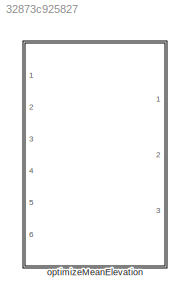
MODEL slx_32873c925827
KIND library
CONFIG AbsTol = auto
CONFIG EnableMultiTasking = off
CONFIG FixedStep = auto
CONFIG MaxStep = auto
CONFIG MinStep = auto
CONFIG RelTol = 1e-3
CONFIG SampleTimeConstraint = Unconstrained
CONFIG SolverName = VariableStepAuto
CONFIG StartTime = 0.0
CONFIG StopTime = 10.0
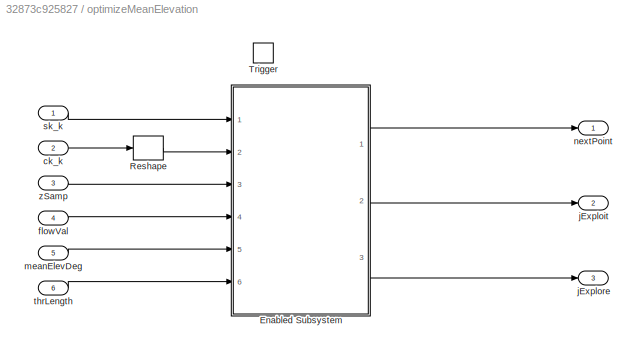
BLOCK [SubSystem] optimizeMeanElevation
  Ports = [6, 3, 0, 1]
  RequestExecContextInheritance = off
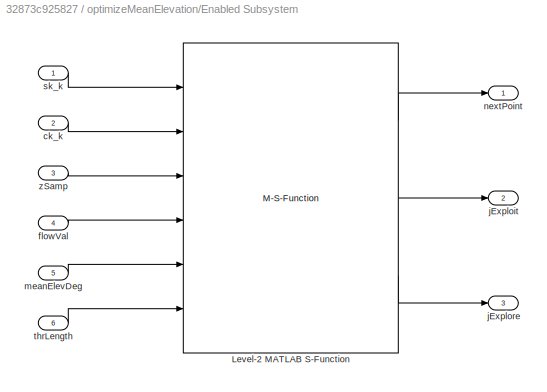
BLOCK [SubSystem] optimizeMeanElevation/Enabled Subsystem
  Ports = [6, 3]
  RequestExecContextInheritance = off
  TreatAsAtomicUnit = on
BLOCK [M-S-Function] optimizeMeanElevation/Enabled Subsystem/Level-2 MATLAB S-Function
  FunctionName = optimizeTrajectory_Lvl2SFun
  Parameters = mpckfgp,hiLvlCtrl
  Ports = [6, 3]
BLOCK [Inport] optimizeMeanElevation/Enabled Subsystem/ck_k
  Port = 2
BLOCK [Inport] optimizeMeanElevation/Enabled Subsystem/flowVal
  Port = 4
BLOCK [Outport] optimizeMeanElevation/Enabled Subsystem/jExploit
  Port = 2
BLOCK [Outport] optimizeMeanElevation/Enabled Subsystem/jExplore
  Port = 3
BLOCK [Inport] optimizeMeanElevation/Enabled Subsystem/meanElevDeg
  Port = 5
BLOCK [Outport] optimizeMeanElevation/Enabled Subsystem/nextPoint
BLOCK [Inport] optimizeMeanElevation/Enabled Subsystem/sk_k
BLOCK [Inport] optimizeMeanElevation/Enabled Subsystem/thrLength
  Port = 6
BLOCK [Inport] optimizeMeanElevation/Enabled Subsystem/zSamp
  Port = 3
BLOCK [Reshape] optimizeMeanElevation/Reshape
  OutputDimensionality = Column vector (2-D)
  Ports = [1, 1]
BLOCK [TriggerPort] optimizeMeanElevation/Trigger
  Ports = []
  StatesWhenEnabling = held
  VariantControl = Variant
BLOCK [Inport] optimizeMeanElevation/ck_k
  Port = 2
BLOCK [Inport] optimizeMeanElevation/flowVal
  Port = 4
BLOCK [Outport] optimizeMeanElevation/jExploit
  Port = 2
BLOCK [Outport] optimizeMeanElevation/jExplore
  Port = 3
BLOCK [Inport] optimizeMeanElevation/meanElevDeg
  Port = 5
BLOCK [Outport] optimizeMeanElevation/nextPoint
BLOCK [Inport] optimizeMeanElevation/sk_k
BLOCK [Inport] optimizeMeanElevation/thrLength
  Port = 6
BLOCK [Inport] optimizeMeanElevation/zSamp
  Port = 3
LINE optimizeMeanElevation/Enabled Subsystem/Level-2 MATLAB S-Function:1 -> optimizeMeanElevation/Enabled Subsystem/nextPoint:1
LINE optimizeMeanElevation/Enabled Subsystem/Level-2 MATLAB S-Function:2 -> optimizeMeanElevation/Enabled Subsystem/jExploit:1
LINE optimizeMeanElevation/Enabled Subsystem/Level-2 MATLAB S-Function:3 -> optimizeMeanElevation/Enabled Subsystem/jExplore:1
LINE optimizeMeanElevation/Enabled Subsystem/ck_k:1 -> optimizeMeanElevation/Enabled Subsystem/Level-2 MATLAB S-Function:2
LINE optimizeMeanElevation/Enabled Subsystem/flowVal:1 -> optimizeMeanElevation/Enabled Subsystem/Level-2 MATLAB S-Function:4
LINE optimizeMeanElevation/Enabled Subsystem/meanElevDeg:1 -> optimizeMeanElevation/Enabled Subsystem/Level-2 MATLAB S-Function:5
LINE optimizeMeanElevation/Enabled Subsystem/sk_k:1 -> optimizeMeanElevation/Enabled Subsystem/Level-2 MATLAB S-Function:1
LINE optimizeMeanElevation/Enabled Subsystem/thrLength:1 -> optimizeMeanElevation/Enabled Subsystem/Level-2 MATLAB S-Function:6
LINE optimizeMeanElevation/Enabled Subsystem/zSamp:1 -> optimizeMeanElevation/Enabled Subsystem/Level-2 MATLAB S-Function:3
LINE optimizeMeanElevation/Enabled Subsystem:1 -> optimizeMeanElevation/nextPoint:1
LINE optimizeMeanElevation/Enabled Subsystem:2 -> optimizeMeanElevation/jExploit:1
LINE optimizeMeanElevation/Enabled Subsystem:3 -> optimizeMeanElevation/jExplore:1
LINE optimizeMeanElevation/Reshape:1 -> optimizeMeanElevation/Enabled Subsystem:2
LINE optimizeMeanElevation/ck_k:1 -> optimizeMeanElevation/Reshape:1
LINE optimizeMeanElevation/flowVal:1 -> optimizeMeanElevation/Enabled Subsystem:4
LINE optimizeMeanElevation/meanElevDeg:1 -> optimizeMeanElevation/Enabled Subsystem:5
LINE optimizeMeanElevation/sk_k:1 -> optimizeMeanElevation/Enabled Subsystem:1
LINE optimizeMeanElevation/thrLength:1 -> optimizeMeanElevation/Enabled Subsystem:6
LINE optimizeMeanElevation/zSamp:1 -> optimizeMeanElevation/Enabled Subsystem:3
